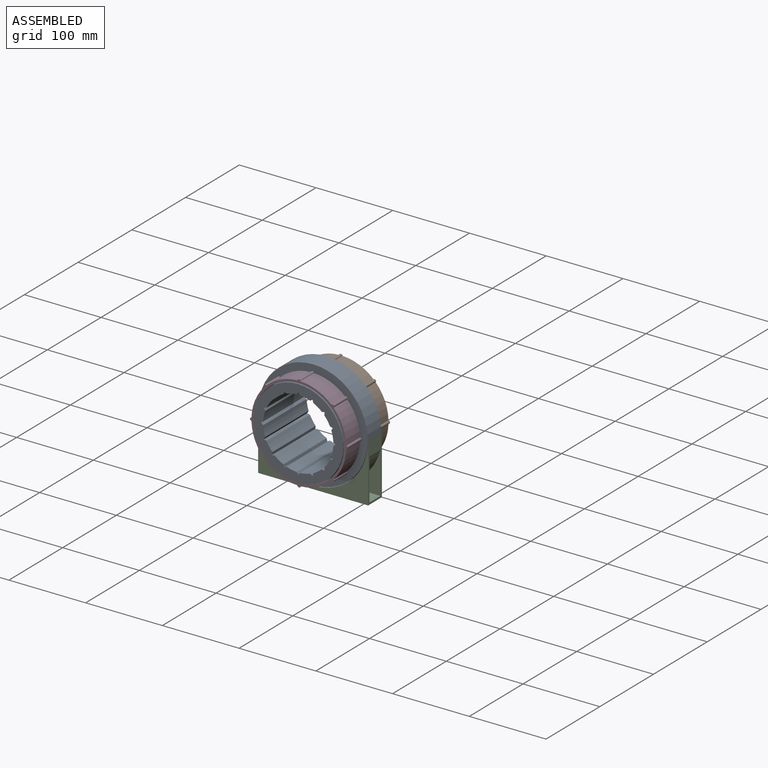
[diagram: assembled view]
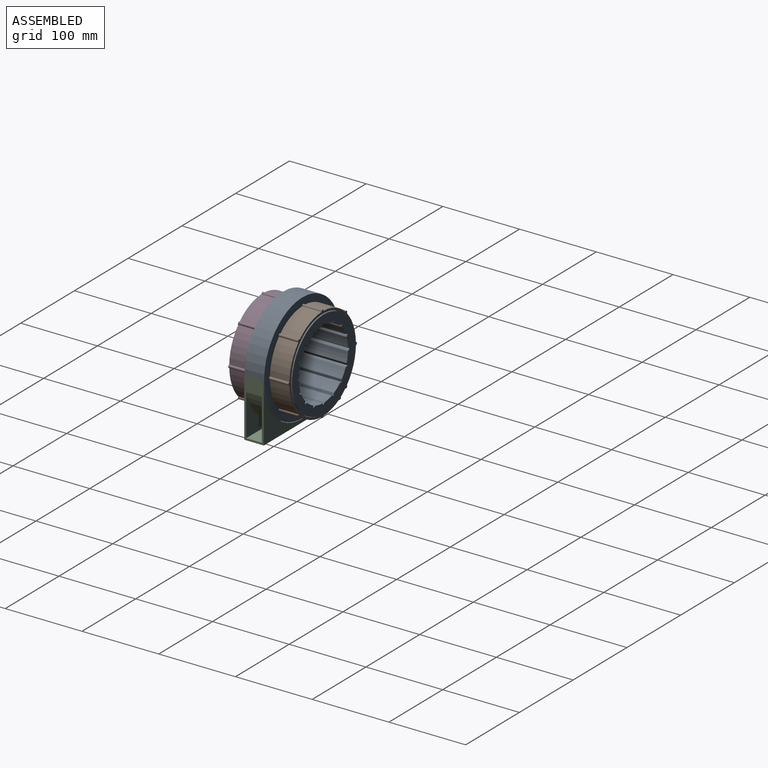
[diagram: assembled view, second angle]
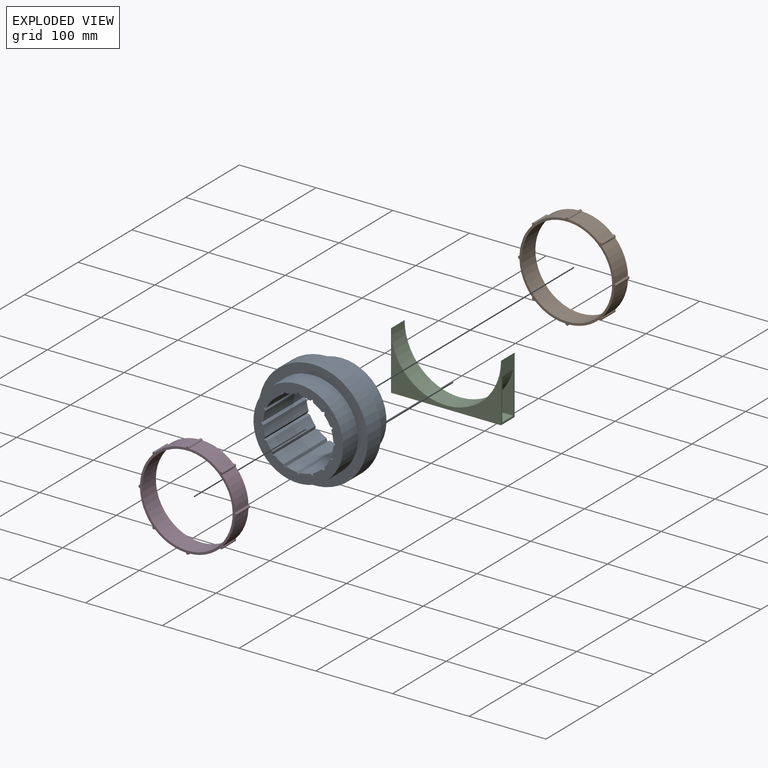
[diagram: exploded view]
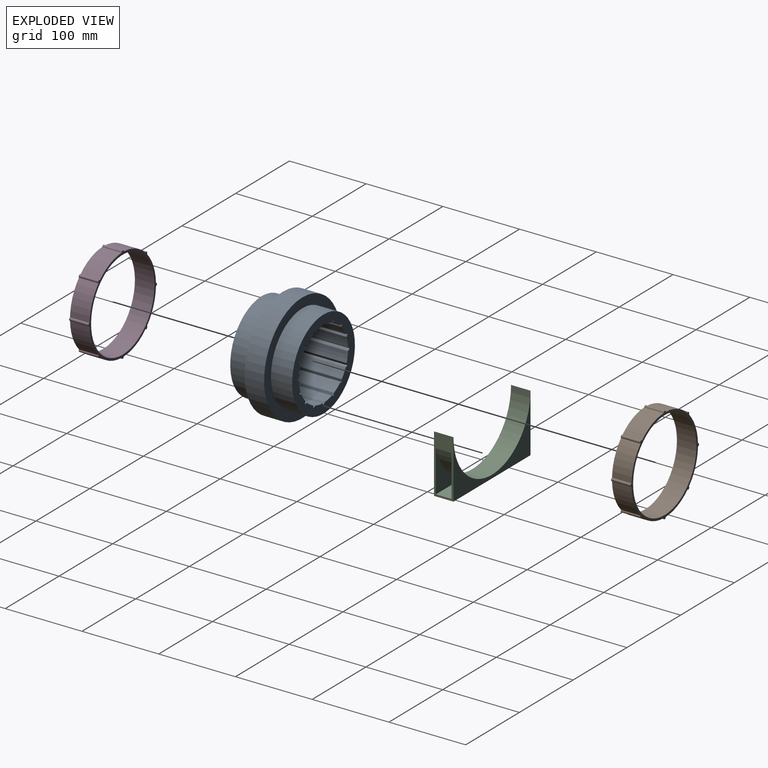
[diagram: exploded view, second angle]
ASSEMBLY  parts=4 mates=3
PART A: 55 faces, bbox 142.2x80.7x142.2 mm
  f0: plane 116.84x116.84mm, normal (0,-1,0), area 4053.2mm2, adj f1,f2,f3,f4,f5,f6,f7,f8
  f1: cylinder r=45.72mm len=80.69mm, axis (0,1,0), area 1090.9mm2, adj f0,f16,f23,f53
  f2: cylinder r=45.72mm len=80.69mm, axis (0,1,0), area 1090.9mm2, adj f0,f16,f51,f54
  f3: cylinder r=45.72mm len=80.69mm, axis (0,1,0), area 1090.9mm2, adj f0,f16,f49,f52
  f4: cylinder r=45.72mm len=80.69mm, axis (0,1,0), area 1090.9mm2, adj f0,f16,f47,f50
  f5: cylinder r=45.72mm len=80.69mm, axis (0,1,0), area 1090.9mm2, adj f0,f16,f45,f48
  f6: cylinder r=45.72mm len=80.69mm, axis (0,1,0), area 1090.9mm2, adj f0,f16,f43,f46
  f7: cylinder r=45.72mm len=80.69mm, axis (0,1,0), area 1090.9mm2, adj f0,f16,f41,f44
  f8: cylinder r=45.72mm len=80.69mm, axis (0,1,0), area 1090.9mm2, adj f0,f16,f39,f42
  f9: cylinder r=45.72mm len=80.69mm, axis (0,1,0), area 1090.9mm2, adj f0,f16,f37,f40
  f10: cylinder r=45.72mm len=80.69mm, axis (0,1,0), area 1090.9mm2, adj f0,f16,f35,f38
  f11: cylinder r=45.72mm len=80.69mm, axis (0,1,0), area 1090.9mm2, adj f0,f16,f33,f36
  f12: cylinder r=45.72mm len=80.69mm, axis (0,1,0), area 1090.9mm2, adj f0,f16,f31,f34
  f13: cylinder r=45.72mm len=80.69mm, axis (0,1,0), area 1090.9mm2, adj f0,f16,f29,f32
  f14: cylinder r=45.72mm len=80.69mm, axis (0,1,0), area 1090.9mm2, adj f0,f16,f27,f30
  f15: cylinder r=45.72mm len=80.69mm, axis (0,1,0), area 1090.9mm2, adj f0,f16,f25,f28
  f16: plane 116.84x116.84mm, normal (0,1,0), area 4053.2mm2, adj f1,f2,f3,f4,f5,f6,f7,f8
  f17: plane 142.24x142.24mm, normal (0,-1,0), area 5168.4mm2, adj f18,f22
  f18: cylinder r=58.42mm len=116.84mm, axis (0,1,0), area 10146.6mm2, adj f0,f17
  f19: cylinder r=45.72mm len=80.69mm, axis (0,1,0), area 1090.9mm2, adj f0,f16,f24,f26
  f20: cylinder r=58.42mm len=116.84mm, axis (0,1,0), area 10146.6mm2, adj f16,f21
  f21: plane 142.24x142.24mm, normal (0,1,0), area 5168.4mm2, adj f20,f22
  f22: cylinder r=71.12mm len=142.24mm, axis (0,1,0), area 11350.2mm2, adj f17,f21
  f23: plane 80.69x2.94mm, normal (0.8,0,-0.6), area 297.2mm2, adj f0,f1,f16,f24
  f24: plane 80.69x2.94mm, normal (-0.8,0,-0.6), area 297.2mm2, adj f0,f16,f19,f23
  f25: plane 80.69x3.57mm, normal (-0.97,0,-0.25), area 297.2mm2, adj f0,f15,f16,f26
  f26: plane 80.69x3.17mm, normal (0.51,0,-0.86), area 297.2mm2, adj f0,f16,f19,f25
  f27: plane 80.69x3.65mm, normal (-0.99,0,0.14), area 297.2mm2, adj f0,f14,f16,f28
  f28: plane 80.69x3.65mm, normal (0.14,0,-0.99), area 297.2mm2, adj f0,f15,f16,f27
  f29: plane 80.69x3.17mm, normal (-0.86,0,0.51), area 297.2mm2, adj f0,f13,f16,f30
  f30: plane 80.69x3.57mm, normal (-0.25,0,-0.97), area 297.2mm2, adj f0,f14,f16,f29
  f31: plane 80.69x2.94mm, normal (-0.6,0,0.8), area 297.2mm2, adj f0,f12,f16,f32
  f32: plane 80.69x2.94mm, normal (-0.6,0,-0.8), area 297.2mm2, adj f0,f13,f16,f31
  f33: plane 80.69x3.57mm, normal (-0.25,0,0.97), area 297.2mm2, adj f0,f11,f16,f34
  f34: plane 80.69x3.17mm, normal (-0.86,0,-0.51), area 297.2mm2, adj f0,f12,f16,f33
  f35: plane 80.69x3.65mm, normal (0.14,0,0.99), area 297.2mm2, adj f0,f10,f16,f36
  f36: plane 80.69x3.65mm, normal (-0.99,0,-0.14), area 297.2mm2, adj f0,f11,f16,f35
  f37: plane 80.69x3.17mm, normal (0.51,0,0.86), area 297.2mm2, adj f0,f9,f16,f38
  f38: plane 80.69x3.57mm, normal (-0.97,0,0.25), area 297.2mm2, adj f0,f10,f16,f37
  f39: plane 80.69x2.94mm, normal (0.8,0,0.6), area 297.2mm2, adj f0,f8,f16,f40
  f40: plane 80.69x2.94mm, normal (-0.8,0,0.6), area 297.2mm2, adj f0,f9,f16,f39
  f41: plane 80.69x3.57mm, normal (0.97,0,0.25), area 297.2mm2, adj f0,f7,f16,f42
  f42: plane 80.69x3.17mm, normal (-0.51,0,0.86), area 297.2mm2, adj f0,f8,f16,f41
  f43: plane 80.69x3.65mm, normal (0.99,0,-0.14), area 297.2mm2, adj f0,f6,f16,f44
  f44: plane 80.69x3.65mm, normal (-0.14,0,0.99), area 297.2mm2, adj f0,f7,f16,f43
  f45: plane 80.69x3.17mm, normal (0.86,0,-0.51), area 297.2mm2, adj f0,f5,f16,f46
  f46: plane 80.69x3.57mm, normal (0.25,0,0.97), area 297.2mm2, adj f0,f6,f16,f45
  f47: plane 80.69x2.94mm, normal (0.6,0,-0.8), area 297.2mm2, adj f0,f4,f16,f48
  f48: plane 80.69x2.94mm, normal (0.6,0,0.8), area 297.2mm2, adj f0,f5,f16,f47
  f49: plane 80.69x3.57mm, normal (0.25,0,-0.97), area 297.2mm2, adj f0,f3,f16,f50
  f50: plane 80.69x3.17mm, normal (0.86,0,0.51), area 297.2mm2, adj f0,f4,f16,f49
  f51: plane 80.69x3.65mm, normal (-0.14,0,-0.99), area 297.2mm2, adj f0,f2,f16,f52
  f52: plane 80.69x3.65mm, normal (0.99,0,0.14), area 297.2mm2, adj f0,f3,f16,f51
  f53: plane 80.69x3.17mm, normal (-0.51,0,-0.86), area 297.2mm2, adj f0,f1,f16,f54
  f54: plane 80.69x3.57mm, normal (0.97,0,-0.25), area 297.2mm2, adj f0,f2,f16,f53
PART B: 19 faces, bbox 127.6x25.4x127.6 mm
  f0: cylinder r=61.88mm len=40.48mm, axis (0,1,0), area 1137.6mm2, adj f9,f10,f17,f18
  f1: cylinder r=61.88mm len=40.48mm, axis (0,1,0), area 1137.6mm2, adj f9,f10,f16,f17
  f2: cylinder r=61.88mm len=40.48mm, axis (0,1,0), area 1137.6mm2, adj f9,f10,f15,f16
  f3: cylinder r=61.88mm len=40.48mm, axis (0,1,0), area 1137.6mm2, adj f9,f10,f14,f15
  f4: cylinder r=61.88mm len=40.48mm, axis (0,1,0), area 1137.6mm2, adj f9,f10,f13,f14
  f5: cylinder r=61.88mm len=40.48mm, axis (0,1,0), area 1137.6mm2, adj f9,f10,f12,f13
  f6: cylinder r=61.88mm len=40.48mm, axis (0,1,0), area 1137.6mm2, adj f9,f10,f11,f12
  f7: cylinder r=58.93mm len=117.86mm, axis (0,1,0), area 9405mm2, adj f9,f10
  f8: cylinder r=61.88mm len=40.48mm, axis (0,1,0), area 1137.6mm2, adj f9,f10,f11,f18
  f9: plane 127.57x127.57mm, normal (0,-1,0), area 1164.4mm2, adj f0,f1,f2,f3,f4,f5,f6,f7
  f10: plane 127.57x127.57mm, normal (0,1,0), area 1164.4mm2, adj f0,f1,f2,f3,f4,f5,f6,f7
  f11: cylinder r=1.91mm len=25.4mm, axis (0,-1,0), area 153.5mm2, adj f6,f8,f9,f10
  f12: cylinder r=1.91mm len=25.4mm, axis (0,-1,0), area 153.5mm2, adj f5,f6,f9,f10
  f13: cylinder r=1.91mm len=25.4mm, axis (0,-1,0), area 153.5mm2, adj f4,f5,f9,f10
  f14: cylinder r=1.91mm len=25.4mm, axis (0,-1,0), area 153.5mm2, adj f3,f4,f9,f10
  f15: cylinder r=1.91mm len=25.4mm, axis (0,-1,0), area 153.5mm2, adj f2,f3,f9,f10
  f16: cylinder r=1.91mm len=25.4mm, axis (0,-1,0), area 153.5mm2, adj f1,f2,f9,f10
  f17: cylinder r=1.91mm len=25.4mm, axis (0,-1,0), area 153.5mm2, adj f0,f1,f9,f10
  f18: cylinder r=1.91mm len=25.4mm, axis (0,-1,0), area 153.5mm2, adj f0,f8,f9,f10
PART C: 14 faces, bbox 143.4x25.4x75.9 mm
  f0: plane 75.95x25.4mm, normal (-1,0,0), area 828.7mm2, adj f2,f3,f4,f5,f10,f11,f12,f13
  f1: plane 75.95x25.4mm, normal (1,0,0), area 828.7mm2, adj f2,f3,f4,f5,f6,f7,f8,f9
  f2: cylinder r=71.71mm len=143.42mm, axis (0,1,0), area 5722.1mm2, adj f0,f1,f4,f5
  f3: plane 143.42x25.4mm, normal (0,0,-1), area 3642.8mm2, adj f0,f1,f4,f5
  f4: plane 143.42x75.95mm, normal (0,-1,0), area 2815.1mm2, adj f0,f1,f2,f3
  f5: plane 143.42x75.95mm, normal (0,1,0), area 2815.1mm2, adj f0,f1,f2,f3
  f6: plane 60.57x54.15mm, normal (0,-1,0), area 973.2mm2, adj f1,f8,f9
  f7: plane 60.57x54.15mm, normal (0,1,0), area 973.2mm2, adj f1,f8,f9
  f8: plane 60.57x20.32mm, normal (0,0,1), area 1230.8mm2, adj f1,f6,f7,f9
  f9: cylinder r=74.25mm len=60.57mm, axis (0,1,0), area 1747mm2, adj f1,f6,f7,f8
  f10: plane 60.57x54.15mm, normal (0,-1,0), area 973.2mm2, adj f0,f12,f13
  f11: plane 60.57x54.15mm, normal (0,1,0), area 973.2mm2, adj f0,f12,f13
  f12: cylinder r=74.25mm len=60.57mm, axis (0,1,0), area 1747mm2, adj f0,f10,f11,f13
  f13: plane 60.57x20.32mm, normal (0,0,1), area 1230.8mm2, adj f0,f10,f11,f12
PART D: same geometry as B
PLACE A t=(138.46,-480.99,147.82)mm
PLACE B t=(138.46,165.87,147.82)mm
PLACE C t=(138.46,-106.01,147.82)mm
PLACE D t=(138.46,112.83,147.82)mm
MATE fastened D.f7 <-> A.f1  axis (0,1,0) through (138.46,-145.23,147.82)mm
MATE fastened C.f2 <-> A.f1  axis (0,1,0) through (138.46,-118.71,147.82)mm
MATE fastened A.f1 <-> B.f7  axis (0,1,0) through (138.46,-92.19,147.82)mm
